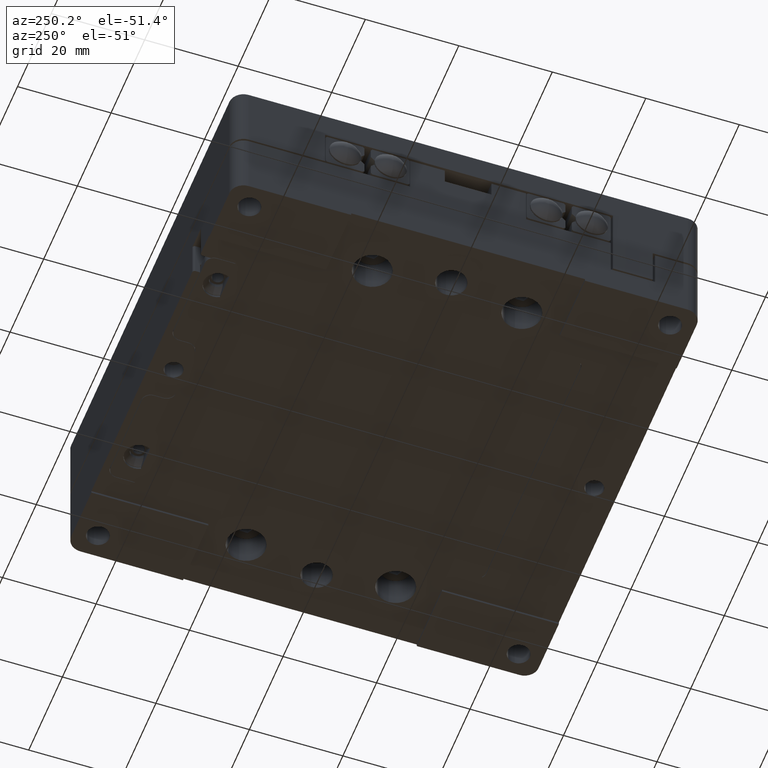
[diagram: clean part render]
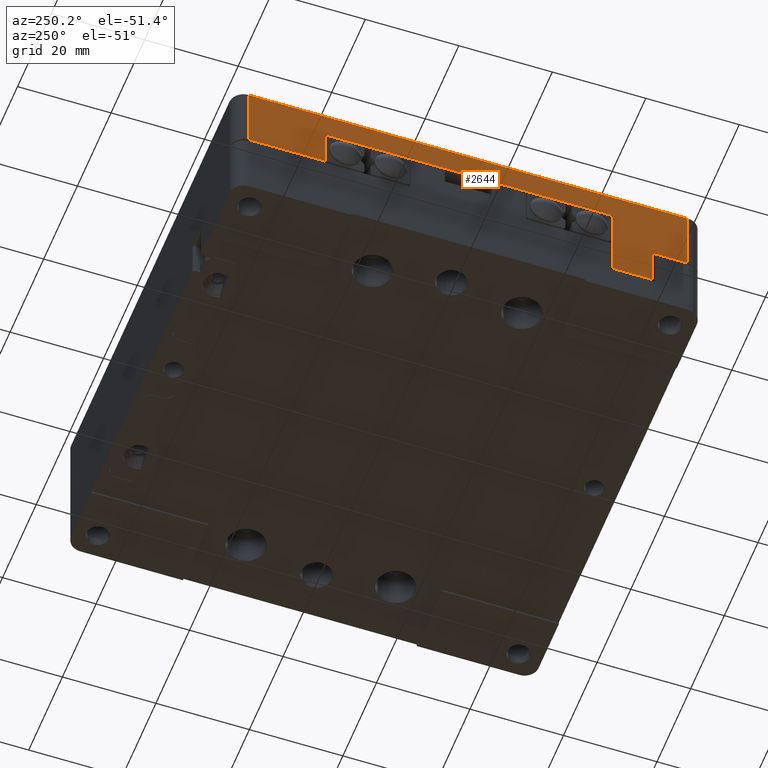
[diagram: same view with one face highlighted and labeled with its STEP entity id]
A machine part, auxiliary view. The second image highlights one B-rep face of the part: STEP entity #2644.
In plain terms, the highlighted planar face has unit normal (1, 0, 0).
Its self-contained STEP definition (entity closure, byte-faithful):
#297 = EDGE_CURVE ( 'NONE', #16715, #8083, #4799, .T. ) ;
#2089 = EDGE_LOOP ( 'NONE', ( #10587, #12611, #16150, #19439, #12481, #27022, #24505, #23713, #2188, #16212 ) ) ;
#2165 = EDGE_CURVE ( 'NONE', #18997, #16807, #21627, .T. ) ;
#2188 = ORIENTED_EDGE ( 'NONE', *, *, #24858, .T. ) ;
#2434 = FACE_OUTER_BOUND ( 'NONE', #2089, .T. ) ;
#2644 = ADVANCED_FACE ( 'NONE', ( #2434 ), #11230, .F. ) ;
#2869 = VERTEX_POINT ( 'NONE', #17797 ) ;
#3100 = CARTESIAN_POINT ( 'NONE',  ( -50.00000000000000000, 47.00000000000000000, 0.5000000000000000000 ) ) ;
#3734 = VECTOR ( 'NONE', #14696, 1000.000000000000000 ) ;
#4296 = CARTESIAN_POINT ( 'NONE',  ( -50.00000000000000000, -31.00000000000000000, 0.5000000000000000000 ) ) ;
#4604 = CARTESIAN_POINT ( 'NONE',  ( -50.00000000000000000, 30.59999999999999787, 0.5000000000000000000 ) ) ;
#4667 = CARTESIAN_POINT ( 'NONE',  ( -50.00000000000000000, 0.000000000000000000, 0.000000000000000000 ) ) ;
#4786 = VERTEX_POINT ( 'NONE', #14188 ) ;
#4799 = LINE ( 'NONE', #21865, #21994 ) ;
#5611 = LINE ( 'NONE', #24506, #20008 ) ;
#6180 = CARTESIAN_POINT ( 'NONE',  ( -50.00000000000000000, 0.000000000000000000, 14.90000000000000036 ) ) ;
#6188 = VECTOR ( 'NONE', #10595, 1000.000000000000000 ) ;
#6673 = DIRECTION ( 'NONE',  ( 0.000000000000000000, 0.000000000000000000, 1.000000000000000000 ) ) ;
#6929 = VERTEX_POINT ( 'NONE', #20985 ) ;
#7495 = DIRECTION ( 'NONE',  ( 0.000000000000000000, 1.000000000000000000, 0.000000000000000000 ) ) ;
#7732 = AXIS2_PLACEMENT_3D ( 'NONE', #4667, #10809, #8862 ) ;
#8083 = VERTEX_POINT ( 'NONE', #3100 ) ;
#8092 = VECTOR ( 'NONE', #7495, 1000.000000000000000 ) ;
#8274 = LINE ( 'NONE', #22836, #15637 ) ;
#8719 = VERTEX_POINT ( 'NONE', #25287 ) ;
#8735 = EDGE_CURVE ( 'NONE', #4786, #2869, #23312, .T. ) ;
#8862 = DIRECTION ( 'NONE',  ( 0.000000000000000000, 1.000000000000000000, 0.000000000000000000 ) ) ;
#9065 = VECTOR ( 'NONE', #25963, 1000.000000000000000 ) ;
#9563 = CARTESIAN_POINT ( 'NONE',  ( -50.00000000000000000, -46.99999869438499900, 0.5000000000000000000 ) ) ;
#10587 = ORIENTED_EDGE ( 'NONE', *, *, #8735, .F. ) ;
#10595 = DIRECTION ( 'NONE',  ( 0.000000000000000000, 0.000000000000000000, 1.000000000000000000 ) ) ;
#10809 = DIRECTION ( 'NONE',  ( 1.000000000000000000, 0.000000000000000000, 0.000000000000000000 ) ) ;
#11230 = PLANE ( 'NONE',  #7732 ) ;
#11500 = CARTESIAN_POINT ( 'NONE',  ( -50.00000000000000000, -39.50000000000000000, -8.000000000000000000 ) ) ;
#11735 = CARTESIAN_POINT ( 'NONE',  ( -50.00000000000000000, 0.000000000000000000, -8.000000000000000000 ) ) ;
#11780 = CARTESIAN_POINT ( 'NONE',  ( -49.99999999998860289, -46.99999869438499900, 14.90000000001140101 ) ) ;
#12481 = ORIENTED_EDGE ( 'NONE', *, *, #15770, .F. ) ;
#12611 = ORIENTED_EDGE ( 'NONE', *, *, #23080, .F. ) ;
#12966 = VERTEX_POINT ( 'NONE', #11780 ) ;
#13034 = DIRECTION ( 'NONE',  ( 0.000000000000000000, 1.000000000000000000, 0.000000000000000000 ) ) ;
#13056 = CARTESIAN_POINT ( 'NONE',  ( -50.00000000000000000, -46.99999738876999800, 0.000000000000000000 ) ) ;
#14111 = VECTOR ( 'NONE', #13034, 1000.000000000000000 ) ;
#14130 = DIRECTION ( 'NONE',  ( 0.000000000000000000, 0.000000000000000000, -1.000000000000000000 ) ) ;
#14188 = CARTESIAN_POINT ( 'NONE',  ( -50.00000000000000000, -31.00000000000000000, -8.000000000000000000 ) ) ;
#14450 = EDGE_CURVE ( 'NONE', #8719, #12966, #25346, .T. ) ;
#14696 = DIRECTION ( 'NONE',  ( 0.000000000000000000, -1.000000000000000000, 0.000000000000000000 ) ) ;
#14702 = VECTOR ( 'NONE', #17251, 1000.000000000000000 ) ;
#14828 = DIRECTION ( 'NONE',  ( 0.000000000000000000, 0.000000000000000000, 1.000000000000000000 ) ) ;
#15294 = LINE ( 'NONE', #13056, #14702 ) ;
#15609 = LINE ( 'NONE', #26668, #8092 ) ;
#15637 = VECTOR ( 'NONE', #14828, 1000.000000000000000 ) ;
#15770 = EDGE_CURVE ( 'NONE', #12966, #18997, #15294, .T. ) ;
#15983 = VECTOR ( 'NONE', #6673, 1000.000000000000000 ) ;
#16137 = EDGE_CURVE ( 'NONE', #8083, #8719, #8274, .T. ) ;
#16150 = ORIENTED_EDGE ( 'NONE', *, *, #26144, .F. ) ;
#16212 = ORIENTED_EDGE ( 'NONE', *, *, #17352, .F. ) ;
#16715 = VERTEX_POINT ( 'NONE', #4604 ) ;
#16807 = VERTEX_POINT ( 'NONE', #21683 ) ;
#17251 = DIRECTION ( 'NONE',  ( 0.000000000000000000, 0.000000000000000000, -1.000000000000000000 ) ) ;
#17352 = EDGE_CURVE ( 'NONE', #2869, #6929, #15609, .T. ) ;
#17508 = LINE ( 'NONE', #11735, #14111 ) ;
#17567 = LINE ( 'NONE', #19534, #15983 ) ;
#17797 = CARTESIAN_POINT ( 'NONE',  ( -50.00000000000000000, -31.00000000000000000, 9.000000000000000000 ) ) ;
#18997 = VERTEX_POINT ( 'NONE', #9563 ) ;
#19439 = ORIENTED_EDGE ( 'NONE', *, *, #2165, .F. ) ;
#19534 = CARTESIAN_POINT ( 'NONE',  ( -50.00000000000000000, 30.59999999999999787, -8.000000000000000000 ) ) ;
#20008 = VECTOR ( 'NONE', #14130, 1000.000000000000000 ) ;
#20985 = CARTESIAN_POINT ( 'NONE',  ( -50.00000000000000000, 30.59999999999999787, 9.000000000000000000 ) ) ;
#21484 = CARTESIAN_POINT ( 'NONE',  ( -50.00000000000000000, 0.000000000000000000, 0.5000000000000000000 ) ) ;
#21627 = LINE ( 'NONE', #21484, #9065 ) ;
#21683 = CARTESIAN_POINT ( 'NONE',  ( -50.00000000000000000, -39.50000000000000000, 0.5000000000000000000 ) ) ;
#21865 = CARTESIAN_POINT ( 'NONE',  ( -50.00000000000000000, 0.000000000000000000, 0.5000000000000000000 ) ) ;
#21994 = VECTOR ( 'NONE', #23469, 1000.000000000000000 ) ;
#22836 = CARTESIAN_POINT ( 'NONE',  ( -50.00000000000000000, 47.00000000000000000, 0.000000000000000000 ) ) ;
#23080 = EDGE_CURVE ( 'NONE', #27258, #4786, #17508, .T. ) ;
#23312 = LINE ( 'NONE', #4296, #6188 ) ;
#23469 = DIRECTION ( 'NONE',  ( 0.000000000000000000, 1.000000000000000000, 0.000000000000000000 ) ) ;
#23713 = ORIENTED_EDGE ( 'NONE', *, *, #297, .F. ) ;
#24505 = ORIENTED_EDGE ( 'NONE', *, *, #16137, .F. ) ;
#24506 = CARTESIAN_POINT ( 'NONE',  ( -50.00000000000000000, -39.50000000000000000, 0.000000000000000000 ) ) ;
#24858 = EDGE_CURVE ( 'NONE', #16715, #6929, #17567, .T. ) ;
#25287 = CARTESIAN_POINT ( 'NONE',  ( -49.99999999995119992, 46.99999869464230073, 14.90000000002009983 ) ) ;
#25346 = LINE ( 'NONE', #6180, #3734 ) ;
#25963 = DIRECTION ( 'NONE',  ( 0.000000000000000000, 1.000000000000000000, 0.000000000000000000 ) ) ;
#26144 = EDGE_CURVE ( 'NONE', #16807, #27258, #5611, .T. ) ;
#26668 = CARTESIAN_POINT ( 'NONE',  ( -50.00000000000000000, -50.00000000000000000, 9.000000000000000000 ) ) ;
#27022 = ORIENTED_EDGE ( 'NONE', *, *, #14450, .F. ) ;
#27258 = VERTEX_POINT ( 'NONE', #11500 ) ;